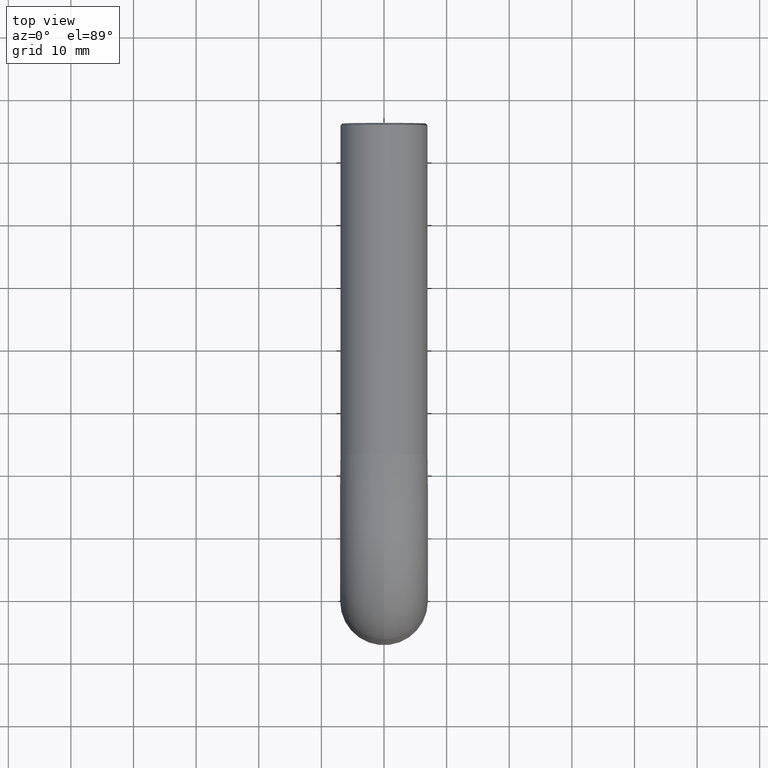
[diagram: clean part render]
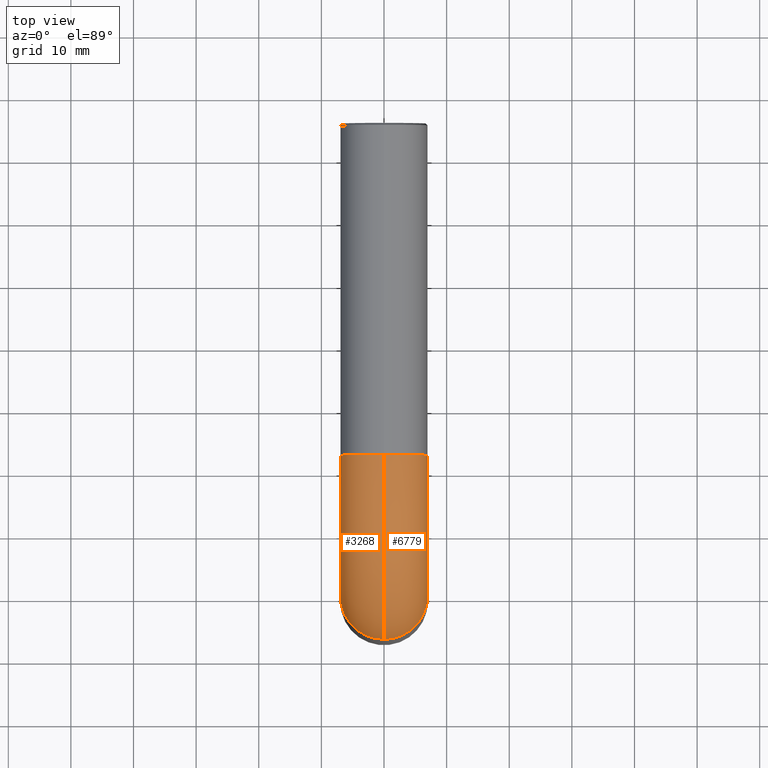
[diagram: same view with one multi-face feature highlighted, each face labeled with its STEP entity id]
A machine part, top view. The highlighted faces form ONE feature: a constant-radius fillet chain: 2 tangent blend faces with common blend radius 7 mm. The faces share edges in the B-rep.
Their STEP definitions:
[1] entity #6779 (Torus):
#33 = VERTEX_POINT ( 'NONE', #10283 ) ;
#82 = CARTESIAN_POINT ( 'NONE',  ( 0.000000000000000000, 0.000000000000000000, 52.99999999999983658 ) ) ;
#178 = CARTESIAN_POINT ( 'NONE',  ( 7.000000000000000888, 8.572527594031474176E-16, 52.99999999999983658 ) ) ;
#802 = CIRCLE ( 'NONE', #7064, 7.000000000000000888 ) ;
#1075 = EDGE_CURVE ( 'NONE', #4448, #3762, #4027, .T. ) ;
#1532 = CARTESIAN_POINT ( 'NONE',  ( 0.000000000000000000, 22.00000000000016342, 75.00000000000000000 ) ) ;
#1816 = AXIS2_PLACEMENT_3D ( 'NONE', #9106, #11324, #9441 ) ;
#1981 = VERTEX_POINT ( 'NONE', #7174 ) ;
#2035 = AXIS2_PLACEMENT_3D ( 'NONE', #1532, #3514, #10080 ) ;
#2895 = CIRCLE ( 'NONE', #4773, 14.99999999999999289 ) ;
#3094 = VERTEX_POINT ( 'NONE', #178 ) ;
#3514 = DIRECTION ( 'NONE',  ( 0.000000000000000000, 1.000000000000000000, -1.459371158509469876E-14 ) ) ;
#3559 = DIRECTION ( 'NONE',  ( 0.000000000000000000, 0.000000000000000000, 1.000000000000000000 ) ) ;
#3623 = EDGE_CURVE ( 'NONE', #3762, #1981, #5470, .T. ) ;
#3762 = VERTEX_POINT ( 'NONE', #9191 ) ;
#3960 = DIRECTION ( 'NONE',  ( 0.000000000000000000, 0.000000000000000000, 1.000000000000000000 ) ) ;
#4027 = CIRCLE ( 'NONE', #4248, 28.99999999999998934 ) ;
#4112 = FACE_OUTER_BOUND ( 'NONE', #9567, .T. ) ;
#4248 = AXIS2_PLACEMENT_3D ( 'NONE', #4257, #9047, #6172 ) ;
#4257 = CARTESIAN_POINT ( 'NONE',  ( 0.000000000000000000, 22.00000000000000000, 53.00000000000000000 ) ) ;
#4448 = VERTEX_POINT ( 'NONE', #6063 ) ;
#4773 = AXIS2_PLACEMENT_3D ( 'NONE', #8786, #11640, #11554 ) ;
#5470 = CIRCLE ( 'NONE', #2035, 7.000000000000000888 ) ;
#5593 = CIRCLE ( 'NONE', #8737, 7.000000000000000888 ) ;
#5605 = TOROIDAL_SURFACE ( 'NONE', #1816, 22.00000000000000000, 7.000000000000000888 ) ;
#5622 = DIRECTION ( 'NONE',  ( 1.000000000000000000, 0.000000000000000000, 0.000000000000000000 ) ) ;
#5860 = ORIENTED_EDGE ( 'NONE', *, *, #8779, .T. ) ;
#6043 = ORIENTED_EDGE ( 'NONE', *, *, #1075, .F. ) ;
#6063 = CARTESIAN_POINT ( 'NONE',  ( 0.000000000000000000, -7.000000000000000000, 52.99999999999983658 ) ) ;
#6172 = DIRECTION ( 'NONE',  ( 0.000000000000000000, 0.000000000000000000, 1.000000000000000000 ) ) ;
#6779 = ADVANCED_FACE ( 'NONE', ( #4112 ), #5605, .T. ) ;
#6789 = DIRECTION ( 'NONE',  ( 1.000000000000000000, 0.000000000000000000, 0.000000000000000000 ) ) ;
#6795 = EDGE_CURVE ( 'NONE', #4448, #3094, #5593, .T. ) ;
#7064 = AXIS2_PLACEMENT_3D ( 'NONE', #82, #3960, #6789 ) ;
#7174 = CARTESIAN_POINT ( 'NONE',  ( 8.572527594031467273E-16, 22.00000000000006040, 67.99999999999998579 ) ) ;
#7429 = CARTESIAN_POINT ( 'NONE',  ( 0.000000000000000000, 0.000000000000000000, 52.99999999999983658 ) ) ;
#8227 = ORIENTED_EDGE ( 'NONE', *, *, #9938, .T. ) ;
#8737 = AXIS2_PLACEMENT_3D ( 'NONE', #7429, #3559, #5622 ) ;
#8779 = EDGE_CURVE ( 'NONE', #33, #1981, #2895, .T. ) ;
#8786 = CARTESIAN_POINT ( 'NONE',  ( 8.572527594031474176E-16, 22.00000000000000000, 53.00000000000000000 ) ) ;
#9047 = DIRECTION ( 'NONE',  ( -1.000000000000000000, -0.000000000000000000, -0.000000000000000000 ) ) ;
#9106 = CARTESIAN_POINT ( 'NONE',  ( 0.000000000000000000, 22.00000000000000000, 53.00000000000000000 ) ) ;
#9191 = CARTESIAN_POINT ( 'NONE',  ( 0.000000000000000000, 22.00000000000026290, 82.00000000000000000 ) ) ;
#9441 = DIRECTION ( 'NONE',  ( 0.000000000000000000, 0.000000000000000000, 1.000000000000000000 ) ) ;
#9567 = EDGE_LOOP ( 'NONE', ( #6043, #11497, #8227, #5860, #9971 ) ) ;
#9938 = EDGE_CURVE ( 'NONE', #3094, #33, #802, .T. ) ;
#9971 = ORIENTED_EDGE ( 'NONE', *, *, #3623, .F. ) ;
#10080 = DIRECTION ( 'NONE',  ( 1.000000000000000000, 0.000000000000000000, 0.000000000000000000 ) ) ;
#10283 = CARTESIAN_POINT ( 'NONE',  ( 8.572527594031474176E-16, 7.000000000000000888, 52.99999999999983658 ) ) ;
#11324 = DIRECTION ( 'NONE',  ( -1.000000000000000000, -0.000000000000000000, -0.000000000000000000 ) ) ;
#11497 = ORIENTED_EDGE ( 'NONE', *, *, #6795, .T. ) ;
#11554 = DIRECTION ( 'NONE',  ( 0.000000000000000000, 0.000000000000000000, 1.000000000000000000 ) ) ;
#11640 = DIRECTION ( 'NONE',  ( -1.000000000000000000, -0.000000000000000000, -0.000000000000000000 ) ) ;
[2] entity #3268 (Torus):
#33 = VERTEX_POINT ( 'NONE', #10283 ) ;
#411 = EDGE_LOOP ( 'NONE', ( #8625, #1115, #10600, #2116, #4622 ) ) ;
#484 = DIRECTION ( 'NONE',  ( 1.000000000000000000, 0.000000000000000000, 0.000000000000000000 ) ) ;
#793 = CARTESIAN_POINT ( 'NONE',  ( 0.000000000000000000, 0.000000000000000000, 52.99999999999983658 ) ) ;
#1075 = EDGE_CURVE ( 'NONE', #4448, #3762, #4027, .T. ) ;
#1115 = ORIENTED_EDGE ( 'NONE', *, *, #1075, .T. ) ;
#1308 = EDGE_CURVE ( 'NONE', #33, #3736, #5352, .T. ) ;
#1609 = CIRCLE ( 'NONE', #11576, 7.000000000000000888 ) ;
#1869 = DIRECTION ( 'NONE',  ( 0.000000000000000000, 0.000000000000000000, 1.000000000000000000 ) ) ;
#1908 = EDGE_CURVE ( 'NONE', #3736, #4448, #1609, .T. ) ;
#1981 = VERTEX_POINT ( 'NONE', #7174 ) ;
#2116 = ORIENTED_EDGE ( 'NONE', *, *, #8779, .F. ) ;
#2442 = CIRCLE ( 'NONE', #5168, 7.000000000000000888 ) ;
#2895 = CIRCLE ( 'NONE', #4773, 14.99999999999999289 ) ;
#3268 = ADVANCED_FACE ( 'NONE', ( #11984 ), #10521, .T. ) ;
#3293 = CARTESIAN_POINT ( 'NONE',  ( 0.000000000000000000, 22.00000000000016342, 75.00000000000000000 ) ) ;
#3736 = VERTEX_POINT ( 'NONE', #7225 ) ;
#3762 = VERTEX_POINT ( 'NONE', #9191 ) ;
#4027 = CIRCLE ( 'NONE', #4248, 28.99999999999998934 ) ;
#4248 = AXIS2_PLACEMENT_3D ( 'NONE', #4257, #9047, #6172 ) ;
#4257 = CARTESIAN_POINT ( 'NONE',  ( 0.000000000000000000, 22.00000000000000000, 53.00000000000000000 ) ) ;
#4448 = VERTEX_POINT ( 'NONE', #6063 ) ;
#4588 = DIRECTION ( 'NONE',  ( 1.000000000000000000, 0.000000000000000000, 0.000000000000000000 ) ) ;
#4622 = ORIENTED_EDGE ( 'NONE', *, *, #1308, .T. ) ;
#4773 = AXIS2_PLACEMENT_3D ( 'NONE', #8786, #11640, #11554 ) ;
#5168 = AXIS2_PLACEMENT_3D ( 'NONE', #3293, #8088, #5218 ) ;
#5218 = DIRECTION ( 'NONE',  ( 1.000000000000000000, 0.000000000000000000, 0.000000000000000000 ) ) ;
#5352 = CIRCLE ( 'NONE', #5531, 7.000000000000000888 ) ;
#5531 = AXIS2_PLACEMENT_3D ( 'NONE', #793, #8454, #4588 ) ;
#6063 = CARTESIAN_POINT ( 'NONE',  ( 0.000000000000000000, -7.000000000000000000, 52.99999999999983658 ) ) ;
#6172 = DIRECTION ( 'NONE',  ( 0.000000000000000000, 0.000000000000000000, 1.000000000000000000 ) ) ;
#6325 = AXIS2_PLACEMENT_3D ( 'NONE', #8095, #10982, #1869 ) ;
#7174 = CARTESIAN_POINT ( 'NONE',  ( 8.572527594031467273E-16, 22.00000000000006040, 67.99999999999998579 ) ) ;
#7225 = CARTESIAN_POINT ( 'NONE',  ( -7.000000000000000888, 0.000000000000000000, 52.99999999999983658 ) ) ;
#8061 = DIRECTION ( 'NONE',  ( 0.000000000000000000, 0.000000000000000000, 1.000000000000000000 ) ) ;
#8088 = DIRECTION ( 'NONE',  ( 0.000000000000000000, 1.000000000000000000, -1.459371158509469876E-14 ) ) ;
#8095 = CARTESIAN_POINT ( 'NONE',  ( 0.000000000000000000, 22.00000000000000000, 53.00000000000000000 ) ) ;
#8454 = DIRECTION ( 'NONE',  ( 0.000000000000000000, 0.000000000000000000, 1.000000000000000000 ) ) ;
#8625 = ORIENTED_EDGE ( 'NONE', *, *, #1908, .T. ) ;
#8779 = EDGE_CURVE ( 'NONE', #33, #1981, #2895, .T. ) ;
#8786 = CARTESIAN_POINT ( 'NONE',  ( 8.572527594031474176E-16, 22.00000000000000000, 53.00000000000000000 ) ) ;
#9047 = DIRECTION ( 'NONE',  ( -1.000000000000000000, -0.000000000000000000, -0.000000000000000000 ) ) ;
#9191 = CARTESIAN_POINT ( 'NONE',  ( 0.000000000000000000, 22.00000000000026290, 82.00000000000000000 ) ) ;
#9661 = EDGE_CURVE ( 'NONE', #1981, #3762, #2442, .T. ) ;
#10283 = CARTESIAN_POINT ( 'NONE',  ( 8.572527594031474176E-16, 7.000000000000000888, 52.99999999999983658 ) ) ;
#10521 = TOROIDAL_SURFACE ( 'NONE', #6325, 22.00000000000000000, 7.000000000000000888 ) ;
#10600 = ORIENTED_EDGE ( 'NONE', *, *, #9661, .F. ) ;
#10956 = CARTESIAN_POINT ( 'NONE',  ( 0.000000000000000000, 0.000000000000000000, 52.99999999999983658 ) ) ;
#10982 = DIRECTION ( 'NONE',  ( -1.000000000000000000, -0.000000000000000000, -0.000000000000000000 ) ) ;
#11554 = DIRECTION ( 'NONE',  ( 0.000000000000000000, 0.000000000000000000, 1.000000000000000000 ) ) ;
#11576 = AXIS2_PLACEMENT_3D ( 'NONE', #10956, #8061, #484 ) ;
#11640 = DIRECTION ( 'NONE',  ( -1.000000000000000000, -0.000000000000000000, -0.000000000000000000 ) ) ;
#11984 = FACE_OUTER_BOUND ( 'NONE', #411, .T. ) ;